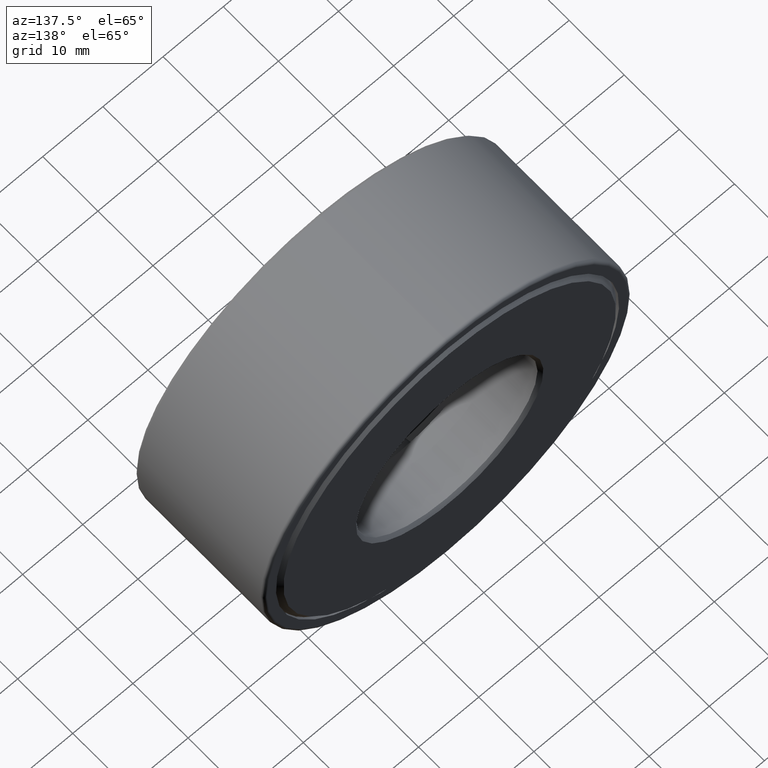
[diagram: clean part render]
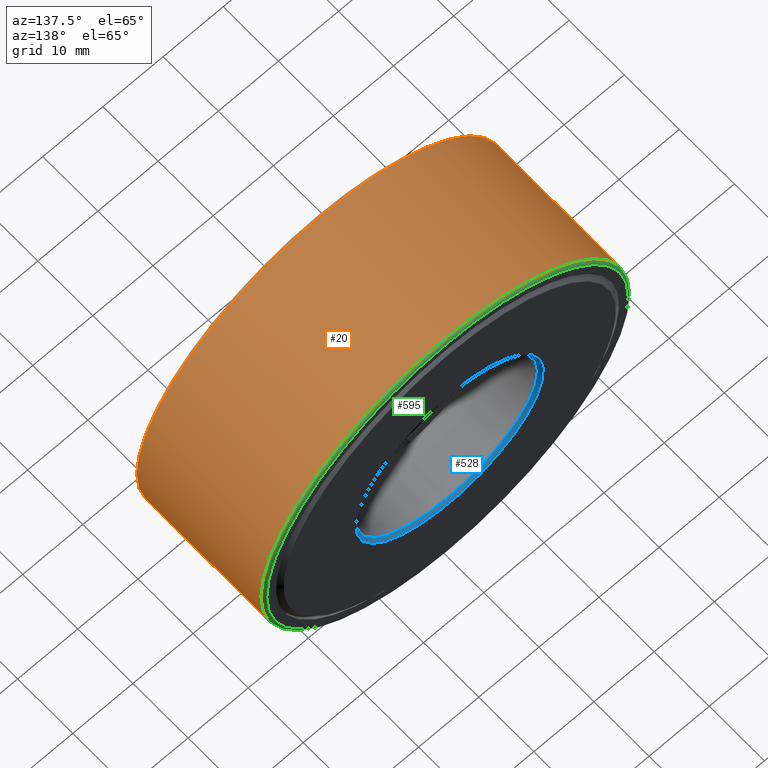
[diagram: same view with three faces highlighted in distinct colors, each labeled with its STEP entity id]
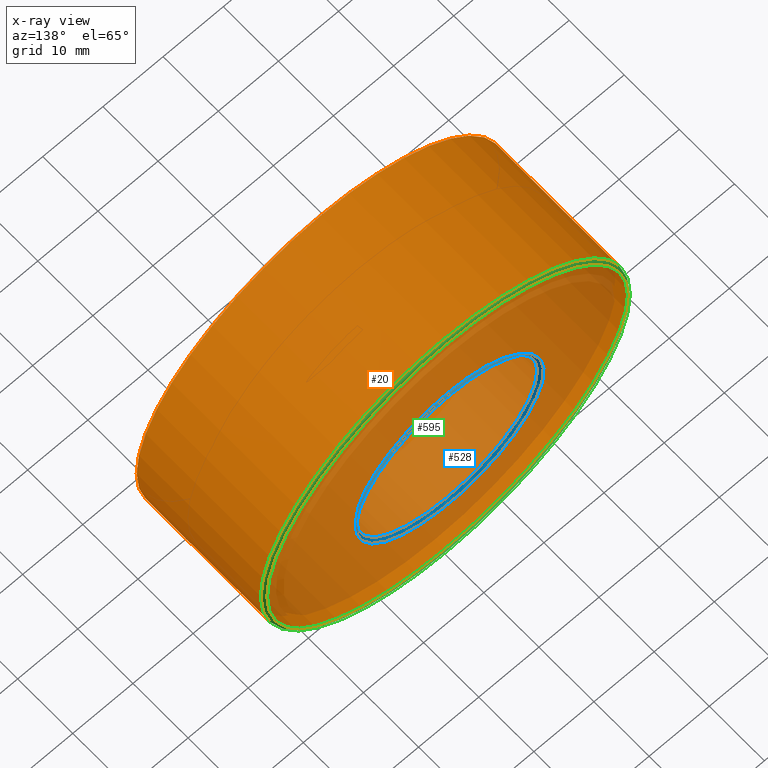
[diagram: x-ray of the same camera — body ghosted, the three highlighted faces saturated]
A machine part, auxiliary view with three faces highlighted in distinct colors.
The next image is the same camera in x-ray (body ghosted, the three faces saturated) — at least one of them is partly hidden behind the body in this view.
Their STEP definitions:

[orange] entity #20 — the highlighted cylindrical surface (bore or boss wall) has radius 30.5594 mm, axis along (-0, 1, -0).
#8 = CIRCLE ( 'NONE', #173, 1.203125000000000000 ) ;
#20 = ADVANCED_FACE ( 'NONE', ( #25, #385 ), #153, .T. ) ;
#25 = FACE_OUTER_BOUND ( 'NONE', #425, .T. ) ;
#113 = EDGE_CURVE ( 'NONE', #510, #510, #8, .T. ) ;
#153 = CYLINDRICAL_SURFACE ( 'NONE', #260, 1.203125000000000000 ) ;
#173 = AXIS2_PLACEMENT_3D ( 'NONE', #182, #303, #503 ) ;
#182 = CARTESIAN_POINT ( 'NONE',  ( 0.0000000000000000000, 0.01499999999999997700, 0.0000000000000000000 ) ) ;
#209 = VERTEX_POINT ( 'NONE', #324 ) ;
#253 = CIRCLE ( 'NONE', #581, 1.203125000000000000 ) ;
#260 = AXIS2_PLACEMENT_3D ( 'NONE', #424, #573, #282 ) ;
#282 = DIRECTION ( 'NONE',  ( 0.0000000000000000000, 0.0000000000000000000, 1.000000000000000000 ) ) ;
#303 = DIRECTION ( 'NONE',  ( -0.0000000000000000000, 1.000000000000000000, -0.0000000000000000000 ) ) ;
#323 = EDGE_CURVE ( 'NONE', #209, #209, #253, .T. ) ;
#324 = CARTESIAN_POINT ( 'NONE',  ( 0.0000000000000000000, 0.9024999999999999700, 1.203125000000000000 ) ) ;
#331 = CARTESIAN_POINT ( 'NONE',  ( 0.0000000000000000000, 0.01499999999999997700, 1.203125000000000000 ) ) ;
#347 = ORIENTED_EDGE ( 'NONE', *, *, #323, .F. ) ;
#385 = FACE_OUTER_BOUND ( 'NONE', #550, .T. ) ;
#424 = CARTESIAN_POINT ( 'NONE',  ( 0.0000000000000000000, 0.0000000000000000000, 0.0000000000000000000 ) ) ;
#425 = EDGE_LOOP ( 'NONE', ( #347 ) ) ;
#463 = DIRECTION ( 'NONE',  ( 0.0000000000000000000, 0.0000000000000000000, 1.000000000000000000 ) ) ;
#492 = ORIENTED_EDGE ( 'NONE', *, *, #113, .T. ) ;
#503 = DIRECTION ( 'NONE',  ( 0.0000000000000000000, 0.0000000000000000000, 1.000000000000000000 ) ) ;
#506 = CARTESIAN_POINT ( 'NONE',  ( 0.0000000000000000000, 0.9024999999999999700, 0.0000000000000000000 ) ) ;
#510 = VERTEX_POINT ( 'NONE', #331 ) ;
#550 = EDGE_LOOP ( 'NONE', ( #492 ) ) ;
#560 = DIRECTION ( 'NONE',  ( -0.0000000000000000000, 1.000000000000000000, -0.0000000000000000000 ) ) ;
#573 = DIRECTION ( 'NONE',  ( -0.0000000000000000000, 1.000000000000000000, -0.0000000000000000000 ) ) ;
#581 = AXIS2_PLACEMENT_3D ( 'NONE', #506, #560, #463 ) ;

[blue] entity #528 — the highlighted conical surface has half-angle 45 deg.
#9 = CONICAL_SURFACE ( 'NONE', #494, 0.5937500000000000000, 0.7853981633974431700 ) ;
#57 = CARTESIAN_POINT ( 'NONE',  ( 0.0000000000000000000, 0.9174999999999997600, 0.0000000000000000000 ) ) ;
#101 = CARTESIAN_POINT ( 'NONE',  ( 0.0000000000000000000, 0.9375000000000000000, 0.0000000000000000000 ) ) ;
#112 = CARTESIAN_POINT ( 'NONE',  ( 0.0000000000000000000, 0.9174999999999997600, 0.0000000000000000000 ) ) ;
#156 = ORIENTED_EDGE ( 'NONE', *, *, #448, .F. ) ;
#169 = AXIS2_PLACEMENT_3D ( 'NONE', #112, #428, #203 ) ;
#184 = FACE_OUTER_BOUND ( 'NONE', #433, .T. ) ;
#188 = AXIS2_PLACEMENT_3D ( 'NONE', #101, #224, #556 ) ;
#203 = DIRECTION ( 'NONE',  ( 0.0000000000000000000, 0.0000000000000000000, 1.000000000000000000 ) ) ;
#224 = DIRECTION ( 'NONE',  ( -0.0000000000000000000, 1.000000000000000000, -0.0000000000000000000 ) ) ;
#244 = CARTESIAN_POINT ( 'NONE',  ( 0.0000000000000000000, 0.9174999999999997600, 0.5937500000000000000 ) ) ;
#276 = DIRECTION ( 'NONE',  ( 0.0000000000000000000, 0.0000000000000000000, 1.000000000000000000 ) ) ;
#281 = VERTEX_POINT ( 'NONE', #288 ) ;
#288 = CARTESIAN_POINT ( 'NONE',  ( 0.0000000000000000000, 0.9375000000000000000, 0.6137500000000001300 ) ) ;
#322 = CIRCLE ( 'NONE', #169, 0.5937500000000000000 ) ;
#326 = EDGE_LOOP ( 'NONE', ( #156 ) ) ;
#342 = VERTEX_POINT ( 'NONE', #244 ) ;
#355 = EDGE_CURVE ( 'NONE', #281, #281, #588, .T. ) ;
#362 = FACE_BOUND ( 'NONE', #326, .T. ) ;
#426 = ORIENTED_EDGE ( 'NONE', *, *, #355, .T. ) ;
#428 = DIRECTION ( 'NONE',  ( -0.0000000000000000000, 1.000000000000000000, -0.0000000000000000000 ) ) ;
#433 = EDGE_LOOP ( 'NONE', ( #426 ) ) ;
#448 = EDGE_CURVE ( 'NONE', #342, #342, #322, .T. ) ;
#494 = AXIS2_PLACEMENT_3D ( 'NONE', #57, #566, #276 ) ;
#528 = ADVANCED_FACE ( 'NONE', ( #184, #362 ), #9, .F. ) ;
#556 = DIRECTION ( 'NONE',  ( 0.0000000000000000000, 0.0000000000000000000, 1.000000000000000000 ) ) ;
#566 = DIRECTION ( 'NONE',  ( -0.0000000000000000000, 1.000000000000000000, -0.0000000000000000000 ) ) ;
#588 = CIRCLE ( 'NONE', #188, 0.6137500000000001300 ) ;

[green] entity #595 — the highlighted toroidal blend (fillet) surface has major radius 30.0514 mm and minor (blend) radius 0.508 mm.
#15 = DIRECTION ( 'NONE',  ( 0.0000000000000000000, 0.0000000000000000000, 1.000000000000000000 ) ) ;
#38 = VERTEX_POINT ( 'NONE', #534 ) ;
#51 = CARTESIAN_POINT ( 'NONE',  ( 0.0000000000000000000, 0.9225000000000001000, 0.0000000000000000000 ) ) ;
#103 = DIRECTION ( 'NONE',  ( 0.0000000000000000000, 0.0000000000000000000, 1.000000000000000000 ) ) ;
#142 = EDGE_LOOP ( 'NONE', ( #575 ) ) ;
#209 = VERTEX_POINT ( 'NONE', #324 ) ;
#220 = TOROIDAL_SURFACE ( 'NONE', #601, 1.183125000000000000, 0.02000000000000005900 ) ;
#253 = CIRCLE ( 'NONE', #581, 1.203125000000000000 ) ;
#284 = DIRECTION ( 'NONE',  ( -0.0000000000000000000, 1.000000000000000000, -0.0000000000000000000 ) ) ;
#323 = EDGE_CURVE ( 'NONE', #209, #209, #253, .T. ) ;
#324 = CARTESIAN_POINT ( 'NONE',  ( 0.0000000000000000000, 0.9024999999999999700, 1.203125000000000000 ) ) ;
#339 = ORIENTED_EDGE ( 'NONE', *, *, #349, .F. ) ;
#349 = EDGE_CURVE ( 'NONE', #38, #38, #359, .T. ) ;
#359 = CIRCLE ( 'NONE', #480, 1.183125000000000000 ) ;
#363 = DIRECTION ( 'NONE',  ( -0.0000000000000000000, 1.000000000000000000, -0.0000000000000000000 ) ) ;
#373 = CARTESIAN_POINT ( 'NONE',  ( 0.0000000000000000000, 0.9024999999999999700, 0.0000000000000000000 ) ) ;
#463 = DIRECTION ( 'NONE',  ( 0.0000000000000000000, 0.0000000000000000000, 1.000000000000000000 ) ) ;
#480 = AXIS2_PLACEMENT_3D ( 'NONE', #51, #363, #103 ) ;
#506 = CARTESIAN_POINT ( 'NONE',  ( 0.0000000000000000000, 0.9024999999999999700, 0.0000000000000000000 ) ) ;
#523 = FACE_OUTER_BOUND ( 'NONE', #142, .T. ) ;
#534 = CARTESIAN_POINT ( 'NONE',  ( 0.0000000000000000000, 0.9225000000000001000, 1.183125000000000000 ) ) ;
#544 = EDGE_LOOP ( 'NONE', ( #339 ) ) ;
#560 = DIRECTION ( 'NONE',  ( -0.0000000000000000000, 1.000000000000000000, -0.0000000000000000000 ) ) ;
#575 = ORIENTED_EDGE ( 'NONE', *, *, #323, .T. ) ;
#581 = AXIS2_PLACEMENT_3D ( 'NONE', #506, #560, #463 ) ;
#595 = ADVANCED_FACE ( 'NONE', ( #597, #523 ), #220, .T. ) ;
#597 = FACE_OUTER_BOUND ( 'NONE', #544, .T. ) ;
#601 = AXIS2_PLACEMENT_3D ( 'NONE', #373, #284, #15 ) ;